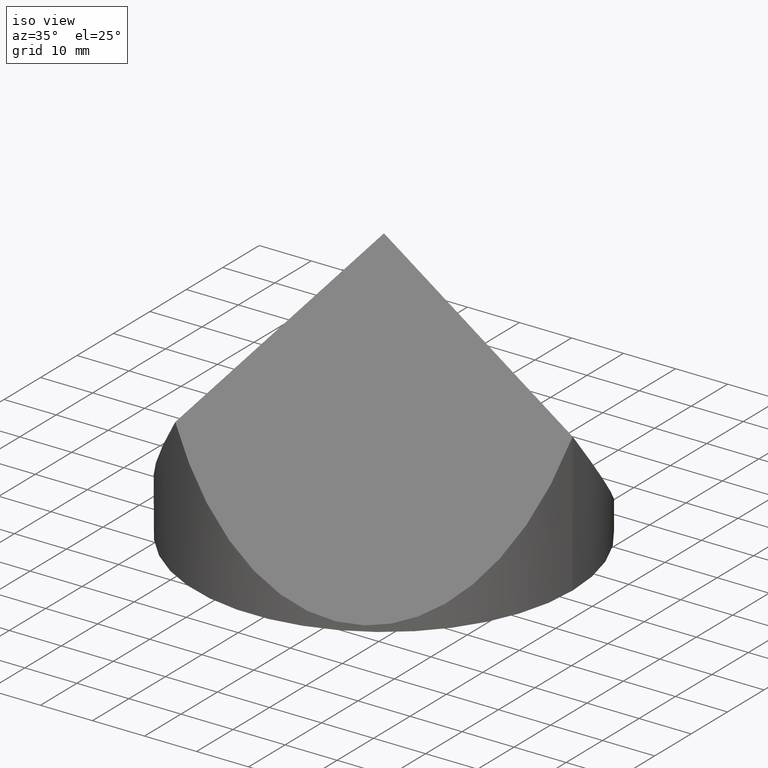
[diagram: clean part render]
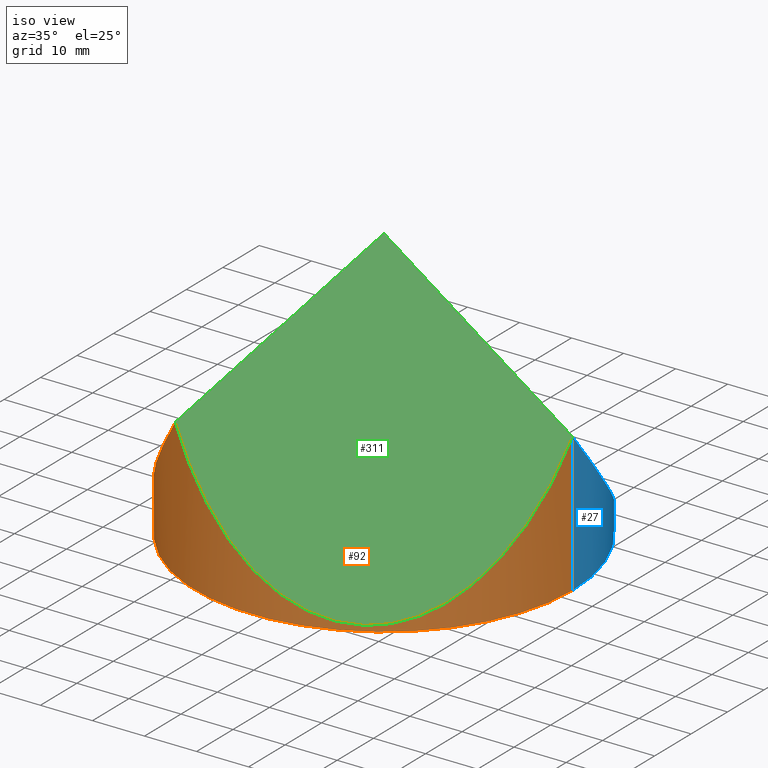
[diagram: same view with three faces highlighted in distinct colors, each labeled with its STEP entity id]
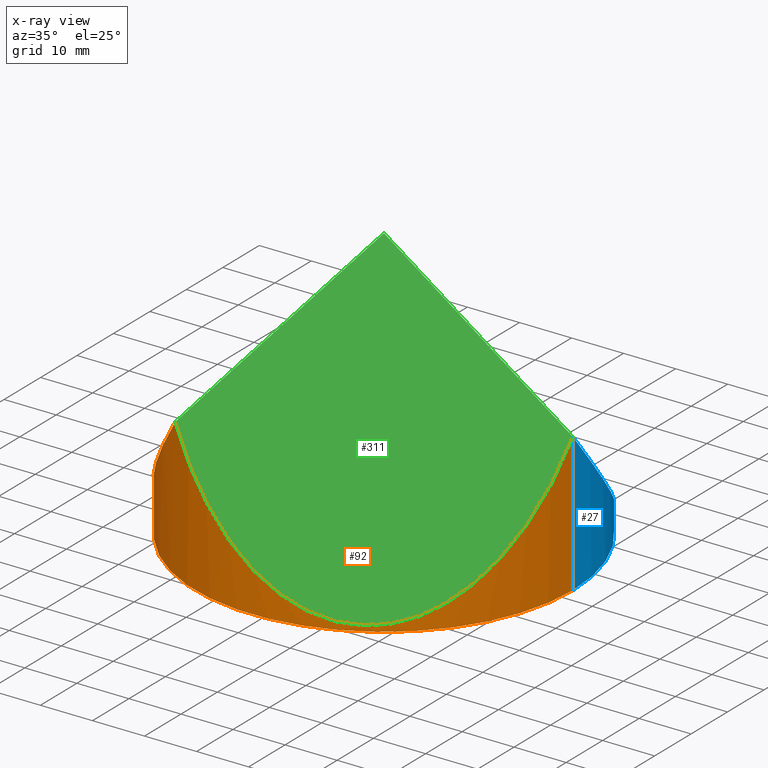
[diagram: x-ray of the same camera — body ghosted, the three highlighted faces saturated]
A machine part, iso view with three faces highlighted in distinct colors.
The next image is the same camera in x-ray (body ghosted, the three faces saturated) — at least one of them is partly hidden behind the body in this view.
Their STEP definitions:

[orange] entity #92 — the highlighted cylindrical surface (partial cylindrical patch) has radius 36.25 mm, axis along (-0, -0, -1).
#8 = EDGE_CURVE ( 'NONE', #159, #16, #199, .T. ) ;
#9 =( BOUNDED_CURVE ( )  B_SPLINE_CURVE ( 3, ( #280, #85, #25, #210 ),
 .UNSPECIFIED., .F., .T. ) 
 B_SPLINE_CURVE_WITH_KNOTS ( ( 4, 4 ),
 ( 5.235987755982986200, 7.330382858376182800 ),
 .UNSPECIFIED. ) 
 CURVE ( )  GEOMETRIC_REPRESENTATION_ITEM ( )  RATIONAL_B_SPLINE_CURVE ( ( 1.000000000000000000, 0.6666666666666663000, 0.6666666666666663000, 1.000000000000000000 ) ) 
 REPRESENTATION_ITEM ( '' )  );
#11 = VECTOR ( 'NONE', #13, 1000.000000000000000 ) ;
#12 = CARTESIAN_POINT ( 'NONE',  ( -29.61578955640706200, -24.75921044359292700, 10.47564734618864600 ) ) ;
#13 = DIRECTION ( 'NONE',  ( -0.0000000000000000000, -0.0000000000000000000, -1.000000000000000000 ) ) ;
#16 = VERTEX_POINT ( 'NONE', #83 ) ;
#21 = CYLINDRICAL_SURFACE ( 'NONE', #180, 36.25000000000000000 ) ;
#23 = CARTESIAN_POINT ( 'NONE',  ( 36.25000000000002100, 3.536864344184175900E-015, 26.72270276368058400 ) ) ;
#24 = EDGE_CURVE ( 'NONE', #66, #159, #298, .T. ) ;
#25 = CARTESIAN_POINT ( 'NONE',  ( 9.062499999999980500, -47.09013133077888100, -11.71824309079885400 ) ) ;
#30 = EDGE_LOOP ( 'NONE', ( #279, #182, #260, #228, #295 ) ) ;
#66 = VERTEX_POINT ( 'NONE', #301 ) ;
#78 = EDGE_CURVE ( 'NONE', #16, #305, #80, .T. ) ;
#80 = CIRCLE ( 'NONE', #132, 36.25000000000000000 ) ;
#83 = CARTESIAN_POINT ( 'NONE',  ( -36.25000000000000000, 0.0000000000000000000, 0.0000000000000000000 ) ) ;
#85 = CARTESIAN_POINT ( 'NONE',  ( 36.25000000000001400, -31.39342088718592200, -11.71824309079876700 ) ) ;
#92 = ADVANCED_FACE ( 'NONE', ( #125 ), #21, .T. ) ;
#103 = VERTEX_POINT ( 'NONE', #23 ) ;
#117 = DIRECTION ( 'NONE',  ( -0.0000000000000000000, -0.0000000000000000000, -1.000000000000000000 ) ) ;
#121 = EDGE_CURVE ( 'NONE', #103, #66, #9, .T. ) ;
#125 = FACE_OUTER_BOUND ( 'NONE', #30, .T. ) ;
#128 = CARTESIAN_POINT ( 'NONE',  ( -36.25000000000000000, 0.0000000000000000000, 52.35000000000000100 ) ) ;
#131 = DIRECTION ( 'NONE',  ( 0.0000000000000000000, 0.0000000000000000000, 1.000000000000000000 ) ) ;
#132 = AXIS2_PLACEMENT_3D ( 'NONE', #177, #131, #154 ) ;
#135 = DIRECTION ( 'NONE',  ( -1.000000000000000000, 0.0000000000000000000, 0.0000000000000000000 ) ) ;
#139 = CARTESIAN_POINT ( 'NONE',  ( -36.25000000000000000, 0.0000000000000000000, 1.095405527360988800 ) ) ;
#154 = DIRECTION ( 'NONE',  ( 1.000000000000000000, 0.0000000000000000000, 0.0000000000000000000 ) ) ;
#158 = CARTESIAN_POINT ( 'NONE',  ( 36.25000000000000000, 4.439344646909153900E-015, 0.0000000000000000000 ) ) ;
#159 = VERTEX_POINT ( 'NONE', #139 ) ;
#177 = CARTESIAN_POINT ( 'NONE',  ( 0.0000000000000000000, 0.0000000000000000000, 0.0000000000000000000 ) ) ;
#180 = AXIS2_PLACEMENT_3D ( 'NONE', #208, #232, #135 ) ;
#182 = ORIENTED_EDGE ( 'NONE', *, *, #121, .T. ) ;
#199 = LINE ( 'NONE', #128, #11 ) ;
#202 = EDGE_CURVE ( 'NONE', #103, #305, #235, .T. ) ;
#208 = CARTESIAN_POINT ( 'NONE',  ( 0.0000000000000000000, 0.0000000000000000000, 52.35000000000000100 ) ) ;
#210 = CARTESIAN_POINT ( 'NONE',  ( -18.12500000000004300, -31.39342088718588600, 26.72270276368043100 ) ) ;
#218 = VECTOR ( 'NONE', #117, 1000.000000000000000 ) ;
#228 = ORIENTED_EDGE ( 'NONE', *, *, #8, .T. ) ;
#232 = DIRECTION ( 'NONE',  ( -0.0000000000000000000, -0.0000000000000000000, -1.000000000000000000 ) ) ;
#235 = LINE ( 'NONE', #278, #218 ) ;
#256 = CARTESIAN_POINT ( 'NONE',  ( -18.12500000000004300, -31.39342088718588600, 26.72270276368043100 ) ) ;
#258 = CARTESIAN_POINT ( 'NONE',  ( -36.25000000000000700, -13.26842088718588100, 1.095405527360982000 ) ) ;
#259 = CARTESIAN_POINT ( 'NONE',  ( -36.25000000000000000, 0.0000000000000000000, 1.095405527360988800 ) ) ;
#260 = ORIENTED_EDGE ( 'NONE', *, *, #24, .T. ) ;
#278 = CARTESIAN_POINT ( 'NONE',  ( 36.25000000000000000, 4.439344646909153900E-015, 52.35000000000000100 ) ) ;
#279 = ORIENTED_EDGE ( 'NONE', *, *, #202, .F. ) ;
#280 = CARTESIAN_POINT ( 'NONE',  ( 36.25000000000002100, 3.536864344184175900E-015, 26.72270276368058400 ) ) ;
#295 = ORIENTED_EDGE ( 'NONE', *, *, #78, .T. ) ;
#298 =( BOUNDED_CURVE ( )  B_SPLINE_CURVE ( 3, ( #256, #12, #258, #259 ),
 .UNSPECIFIED., .F., .F. ) 
 B_SPLINE_CURVE_WITH_KNOTS ( ( 4, 4 ),
 ( 5.235987755982989700, 6.283185307179586200 ),
 .UNSPECIFIED. ) 
 CURVE ( )  GEOMETRIC_REPRESENTATION_ITEM ( )  RATIONAL_B_SPLINE_CURVE ( ( 1.000000000000000000, 0.9106836025229592100, 0.9106836025229592100, 1.000000000000000000 ) ) 
 REPRESENTATION_ITEM ( '' )  );
#301 = CARTESIAN_POINT ( 'NONE',  ( -18.12500000000004300, -31.39342088718588600, 26.72270276368043100 ) ) ;
#305 = VERTEX_POINT ( 'NONE', #158 ) ;

[blue] entity #27 — the highlighted cylindrical surface (partial cylindrical patch) has radius 36.25 mm, axis along (-0, -0, -1).
#8 = EDGE_CURVE ( 'NONE', #159, #16, #199, .T. ) ;
#11 = VECTOR ( 'NONE', #13, 1000.000000000000000 ) ;
#13 = DIRECTION ( 'NONE',  ( -0.0000000000000000000, -0.0000000000000000000, -1.000000000000000000 ) ) ;
#16 = VERTEX_POINT ( 'NONE', #83 ) ;
#23 = CARTESIAN_POINT ( 'NONE',  ( 36.25000000000002100, 3.536864344184175900E-015, 26.72270276368058400 ) ) ;
#27 = ADVANCED_FACE ( 'NONE', ( #129 ), #136, .T. ) ;
#29 =( BOUNDED_CURVE ( )  B_SPLINE_CURVE ( 3, ( #162, #68, #72, #43 ),
 .UNSPECIFIED., .F., .T. ) 
 B_SPLINE_CURVE_WITH_KNOTS ( ( 4, 4 ),
 ( 5.235987755982986200, 7.330382858376182800 ),
 .UNSPECIFIED. ) 
 CURVE ( )  GEOMETRIC_REPRESENTATION_ITEM ( )  RATIONAL_B_SPLINE_CURVE ( ( 1.000000000000000000, 0.6666666666666663000, 0.6666666666666663000, 1.000000000000000000 ) ) 
 REPRESENTATION_ITEM ( '' )  );
#38 = DIRECTION ( 'NONE',  ( -0.0000000000000000000, -0.0000000000000000000, -1.000000000000000000 ) ) ;
#43 = CARTESIAN_POINT ( 'NONE',  ( -18.12500000000005000, 31.39342088718588600, 26.72270276368042400 ) ) ;
#47 = CARTESIAN_POINT ( 'NONE',  ( -29.61578955640706900, 24.75921044359291300, 10.47564734618863500 ) ) ;
#50 = ORIENTED_EDGE ( 'NONE', *, *, #202, .T. ) ;
#53 = ORIENTED_EDGE ( 'NONE', *, *, #8, .F. ) ;
#68 = CARTESIAN_POINT ( 'NONE',  ( 36.25000000000000700, 31.39342088718594000, -11.71824309079878500 ) ) ;
#72 = CARTESIAN_POINT ( 'NONE',  ( 9.062499999999966200, 47.09013133077888100, -11.71824309079887200 ) ) ;
#83 = CARTESIAN_POINT ( 'NONE',  ( -36.25000000000000000, 0.0000000000000000000, 0.0000000000000000000 ) ) ;
#87 = EDGE_CURVE ( 'NONE', #103, #123, #29, .T. ) ;
#103 = VERTEX_POINT ( 'NONE', #23 ) ;
#106 = AXIS2_PLACEMENT_3D ( 'NONE', #176, #38, #133 ) ;
#109 = CARTESIAN_POINT ( 'NONE',  ( -18.12500000000005000, 31.39342088718588600, 26.72270276368042400 ) ) ;
#117 = DIRECTION ( 'NONE',  ( -0.0000000000000000000, -0.0000000000000000000, -1.000000000000000000 ) ) ;
#123 = VERTEX_POINT ( 'NONE', #239 ) ;
#128 = CARTESIAN_POINT ( 'NONE',  ( -36.25000000000000000, 0.0000000000000000000, 52.35000000000000100 ) ) ;
#129 = FACE_OUTER_BOUND ( 'NONE', #217, .T. ) ;
#133 = DIRECTION ( 'NONE',  ( -1.000000000000000000, 0.0000000000000000000, 0.0000000000000000000 ) ) ;
#136 = CYLINDRICAL_SURFACE ( 'NONE', #106, 36.25000000000000000 ) ;
#139 = CARTESIAN_POINT ( 'NONE',  ( -36.25000000000000000, 0.0000000000000000000, 1.095405527360988800 ) ) ;
#142 = ORIENTED_EDGE ( 'NONE', *, *, #87, .F. ) ;
#147 = ORIENTED_EDGE ( 'NONE', *, *, #221, .T. ) ;
#149 = CIRCLE ( 'NONE', #165, 36.25000000000000000 ) ;
#158 = CARTESIAN_POINT ( 'NONE',  ( 36.25000000000000000, 4.439344646909153900E-015, 0.0000000000000000000 ) ) ;
#159 = VERTEX_POINT ( 'NONE', #139 ) ;
#162 = CARTESIAN_POINT ( 'NONE',  ( 36.25000000000002100, 3.536864344184175900E-015, 26.72270276368058400 ) ) ;
#165 = AXIS2_PLACEMENT_3D ( 'NONE', #233, #307, #263 ) ;
#169 = ORIENTED_EDGE ( 'NONE', *, *, #299, .T. ) ;
#176 = CARTESIAN_POINT ( 'NONE',  ( 0.0000000000000000000, 0.0000000000000000000, 52.35000000000000100 ) ) ;
#186 = CARTESIAN_POINT ( 'NONE',  ( -36.25000000000000000, 13.26842088718587900, 1.095405527360981500 ) ) ;
#199 = LINE ( 'NONE', #128, #11 ) ;
#202 = EDGE_CURVE ( 'NONE', #103, #305, #235, .T. ) ;
#217 = EDGE_LOOP ( 'NONE', ( #142, #50, #169, #53, #147 ) ) ;
#218 = VECTOR ( 'NONE', #117, 1000.000000000000000 ) ;
#221 = EDGE_CURVE ( 'NONE', #159, #123, #290, .T. ) ;
#233 = CARTESIAN_POINT ( 'NONE',  ( 0.0000000000000000000, 0.0000000000000000000, 0.0000000000000000000 ) ) ;
#235 = LINE ( 'NONE', #278, #218 ) ;
#239 = CARTESIAN_POINT ( 'NONE',  ( -18.12500000000005000, 31.39342088718588600, 26.72270276368042400 ) ) ;
#263 = DIRECTION ( 'NONE',  ( 1.000000000000000000, 0.0000000000000000000, 0.0000000000000000000 ) ) ;
#278 = CARTESIAN_POINT ( 'NONE',  ( 36.25000000000000000, 4.439344646909153900E-015, 52.35000000000000100 ) ) ;
#290 =( BOUNDED_CURVE ( )  B_SPLINE_CURVE ( 3, ( #310, #186, #47, #109 ),
 .UNSPECIFIED., .F., .T. ) 
 B_SPLINE_CURVE_WITH_KNOTS ( ( 4, 4 ),
 ( 0.0000000000000000000, 1.047197551196596300 ),
 .UNSPECIFIED. ) 
 CURVE ( )  GEOMETRIC_REPRESENTATION_ITEM ( )  RATIONAL_B_SPLINE_CURVE ( ( 1.000000000000000000, 0.9106836025229593200, 0.9106836025229593200, 1.000000000000000000 ) ) 
 REPRESENTATION_ITEM ( '' )  );
#299 = EDGE_CURVE ( 'NONE', #305, #16, #149, .T. ) ;
#305 = VERTEX_POINT ( 'NONE', #158 ) ;
#307 = DIRECTION ( 'NONE',  ( 0.0000000000000000000, 0.0000000000000000000, 1.000000000000000000 ) ) ;
#310 = CARTESIAN_POINT ( 'NONE',  ( -36.25000000000000000, 0.0000000000000000000, 1.095405527360988800 ) ) ;

[green] entity #311 — the highlighted planar face has unit normal (-0.4082, 0.7071, -0.5774).
#9 =( BOUNDED_CURVE ( )  B_SPLINE_CURVE ( 3, ( #280, #85, #25, #210 ),
 .UNSPECIFIED., .F., .T. ) 
 B_SPLINE_CURVE_WITH_KNOTS ( ( 4, 4 ),
 ( 5.235987755982986200, 7.330382858376182800 ),
 .UNSPECIFIED. ) 
 CURVE ( )  GEOMETRIC_REPRESENTATION_ITEM ( )  RATIONAL_B_SPLINE_CURVE ( ( 1.000000000000000000, 0.6666666666666663000, 0.6666666666666663000, 1.000000000000000000 ) ) 
 REPRESENTATION_ITEM ( '' )  );
#19 = DIRECTION ( 'NONE',  ( -0.8165531063768112200, -1.225163215160280000E-016, 0.5772703218305786900 ) ) ;
#20 = DIRECTION ( 'NONE',  ( -0.4082200218682779900, 0.7070578185427394100, -0.5774302165486712200 ) ) ;
#23 = CARTESIAN_POINT ( 'NONE',  ( 36.25000000000002100, 3.536864344184175900E-015, 26.72270276368058400 ) ) ;
#25 = CARTESIAN_POINT ( 'NONE',  ( 9.062499999999980500, -47.09013133077888100, -11.71824309079885400 ) ) ;
#35 = ORIENTED_EDGE ( 'NONE', *, *, #121, .F. ) ;
#44 = ORIENTED_EDGE ( 'NONE', *, *, #60, .F. ) ;
#60 = EDGE_CURVE ( 'NONE', #66, #79, #250, .T. ) ;
#62 = CARTESIAN_POINT ( 'NONE',  ( -11.40424666751465600, -19.75273465018338500, 36.22530929077493800 ) ) ;
#63 = LINE ( 'NONE', #312, #281 ) ;
#66 = VERTEX_POINT ( 'NONE', #301 ) ;
#67 = AXIS2_PLACEMENT_3D ( 'NONE', #237, #20, #112 ) ;
#77 = ORIENTED_EDGE ( 'NONE', *, *, #240, .T. ) ;
#79 = VERTEX_POINT ( 'NONE', #82 ) ;
#82 = CARTESIAN_POINT ( 'NONE',  ( -3.469446951953614200E-015, -4.420505172018915700E-015, 52.35000000000000100 ) ) ;
#85 = CARTESIAN_POINT ( 'NONE',  ( 36.25000000000001400, -31.39342088718592200, -11.71824309079876700 ) ) ;
#103 = VERTEX_POINT ( 'NONE', #23 ) ;
#112 = DIRECTION ( 'NONE',  ( 0.0000000000000000000, 0.6325343505460012700, 0.7745323075116674600 ) ) ;
#121 = EDGE_CURVE ( 'NONE', #103, #66, #9, .T. ) ;
#157 = PLANE ( 'NONE',  #67 ) ;
#205 = DIRECTION ( 'NONE',  ( 0.4082765531884057200, 0.7071557336614136000, 0.5772703218305811300 ) ) ;
#210 = CARTESIAN_POINT ( 'NONE',  ( -18.12500000000004300, -31.39342088718588600, 26.72270276368043100 ) ) ;
#237 = CARTESIAN_POINT ( 'NONE',  ( 46.33235910246752800, 26.74999999999989700, 52.35000000000000100 ) ) ;
#240 = EDGE_CURVE ( 'NONE', #103, #79, #63, .T. ) ;
#250 = LINE ( 'NONE', #62, #264 ) ;
#253 = EDGE_LOOP ( 'NONE', ( #77, #44, #35 ) ) ;
#264 = VECTOR ( 'NONE', #205, 1000.000000000000100 ) ;
#280 = CARTESIAN_POINT ( 'NONE',  ( 36.25000000000002100, 3.536864344184175900E-015, 26.72270276368058400 ) ) ;
#281 = VECTOR ( 'NONE', #19, 1000.000000000000200 ) ;
#301 = CARTESIAN_POINT ( 'NONE',  ( -18.12500000000004300, -31.39342088718588600, 26.72270276368043100 ) ) ;
#306 = FACE_OUTER_BOUND ( 'NONE', #253, .T. ) ;
#311 = ADVANCED_FACE ( 'NONE', ( #306 ), #157, .F. ) ;
#312 = CARTESIAN_POINT ( 'NONE',  ( 35.80067308283096800, 3.469446951953614200E-015, 27.04035888678597000 ) ) ;